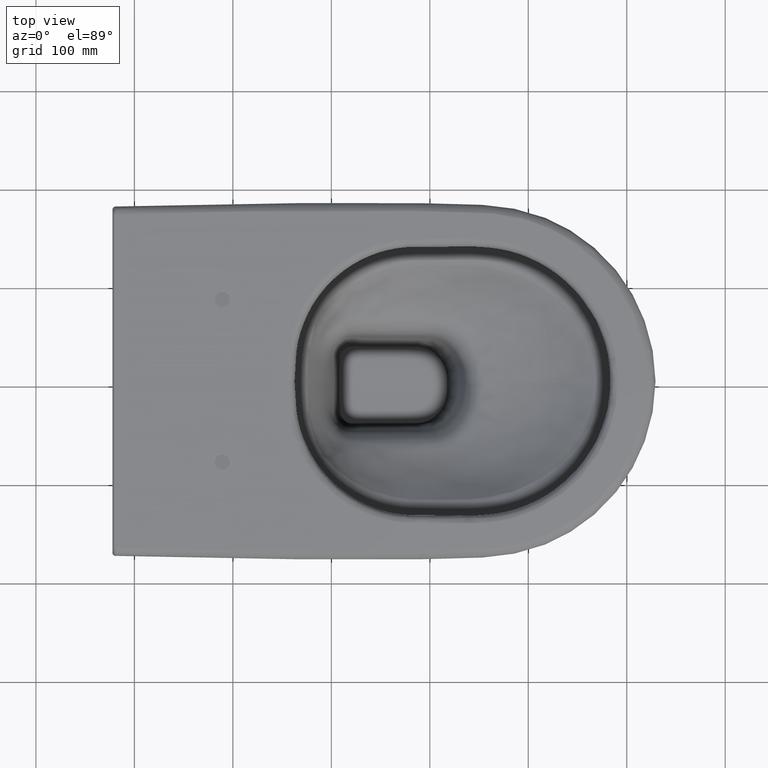
[diagram: clean part render]
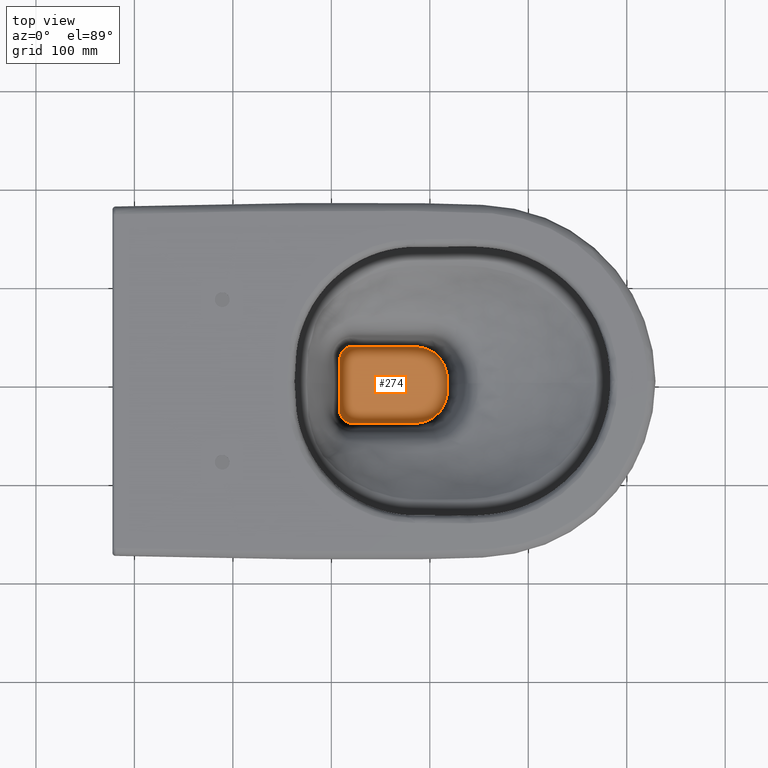
[diagram: same view with one face highlighted and labeled with its STEP entity id]
A machine part, top view. The second image highlights one B-rep face of the part: STEP entity #274.
In plain terms, the highlighted planar face has unit normal (0, 0, 1).
Its self-contained STEP definition (entity closure, byte-faithful):
#149=FACE_OUTER_BOUND('',#498,.T.);
#274=ADVANCED_FACE('',(#149),#388,.T.);
#388=PLANE('',#2264);
#498=EDGE_LOOP('',(#685,#686));
#685=ORIENTED_EDGE('',*,*,#1666,.F.);
#686=ORIENTED_EDGE('',*,*,#1667,.T.);
#1405=VERTEX_POINT('',#4469);
#1406=VERTEX_POINT('',#4470);
#1666=EDGE_CURVE('',#1405,#1406,#2014,.T.);
#1667=EDGE_CURVE('',#1405,#1406,#2015,.T.);
#2014=B_SPLINE_CURVE_WITH_KNOTS('',3,(#4427,#4428,#4429,#4430,#4431,#4432,
#4433,#4434,#4435,#4436,#4437,#4438,#4439,#4440,#4441,#4442,#4443,#4444,
#4445,#4446,#4447,#4448,#4449,#4450,#4451,#4452,#4453,#4454,#4455,#4456,
#4457,#4458,#4459,#4460,#4461,#4462,#4463,#4464,#4465,#4466,#4467,#4468),
 .UNSPECIFIED.,.F.,.F.,(4,2,2,2,2,2,2,2,2,2,2,2,2,2,2,2,2,2,2,2,4),(0.,
0.0312500000000002,0.0625000000000005,0.125000000000001,0.250000000000002,
0.312500000000002,0.343750000000002,0.375000000000002,0.500000000000001,
0.624999999999999,0.687499999999998,0.718749999999998,0.734374999999998,
0.749999999999998,0.781249999999998,0.796874999999998,0.812499999999998,
0.843749999999999,0.874999999999999,0.937499999999999,1.),.UNSPECIFIED.);
#2015=B_SPLINE_CURVE_WITH_KNOTS('',3,(#4471,#4472,#4473,#4474,#4475,#4476,
#4477,#4478,#4479,#4480,#4481,#4482,#4483,#4484,#4485,#4486,#4487,#4488,
#4489,#4490,#4491,#4492,#4493,#4494,#4495,#4496,#4497,#4498,#4499,#4500,
#4501,#4502,#4503,#4504,#4505,#4506,#4507,#4508,#4509,#4510,#4511,#4512),
 .UNSPECIFIED.,.F.,.F.,(4,2,2,2,2,2,2,2,2,2,2,2,2,2,2,2,2,2,2,2,4),(0.,
0.0312500000000002,0.0625000000000003,0.125000000000001,0.250000000000001,
0.312500000000002,0.343750000000002,0.375000000000002,0.500000000000001,
0.624999999999999,0.687499999999999,0.718749999999998,0.734374999999998,
0.749999999999998,0.781249999999998,0.796874999999998,0.812499999999998,
0.843749999999999,0.874999999999999,0.9375,1.),.UNSPECIFIED.);
#2264=AXIS2_PLACEMENT_3D('',#4513,#2352,#2353);
#2352=DIRECTION('',(0.,0.,1.));
#2353=DIRECTION('',(0.966116996922597,-0.258104529710857,0.));
#4427=CARTESIAN_POINT('',(317.802560562712,-2.18945873853844E-14,-216.997843503946));
#4428=CARTESIAN_POINT('',(317.80220057973,-1.74333554590451,-216.997843503946));
#4429=CARTESIAN_POINT('',(317.797428123395,-3.48643017967833,-216.997843503946));
#4430=CARTESIAN_POINT('',(317.792698076288,-6.97288232915837,-216.997843503946));
#4431=CARTESIAN_POINT('',(317.732753951777,-8.7129647013118,-216.997843503946));
#4432=CARTESIAN_POINT('',(317.07932974917,-13.9073546606909,-216.997843503946));
#4433=CARTESIAN_POINT('',(316.082784022679,-17.303198213343,-216.997843503946));
#4434=CARTESIAN_POINT('',(311.589229950912,-26.7276500847813,-216.997843503946));
#4435=CARTESIAN_POINT('',(306.475766931284,-32.0550073958731,-216.997843503946));
#4436=CARTESIAN_POINT('',(297.213874514945,-36.8237993656773,-216.997843503946));
#4437=CARTESIAN_POINT('',(293.819636889955,-37.9137325877949,-216.997843503946));
#4438=CARTESIAN_POINT('',(288.664961433558,-38.710302059458,-216.997843503946));
#4439=CARTESIAN_POINT('',(286.914228802773,-38.8095757655109,-216.997843503946));
#4440=CARTESIAN_POINT('',(283.404410690956,-38.922185211037,-216.997843503946));
#4441=CARTESIAN_POINT('',(281.649474877748,-38.975876071013,-216.997843503946));
#4442=CARTESIAN_POINT('',(272.874048511275,-39.1713282078379,-216.997843503946));
#4443=CARTESIAN_POINT('',(265.852252587347,-39.1855706472924,-216.997843503946));
#4444=CARTESIAN_POINT('',(251.809065900191,-39.2536347989163,-216.997843503946));
#4445=CARTESIAN_POINT('',(244.78745452953,-39.2872779835579,-216.997843503946));
#4446=CARTESIAN_POINT('',(234.25503485264,-39.3329604708255,-216.997843503946));
#4447=CARTESIAN_POINT('',(230.744196124876,-39.3742917195816,-216.997843503946));
#4448=CARTESIAN_POINT('',(225.477970733856,-39.4097532836172,-216.997843503946));
#4449=CARTESIAN_POINT('',(223.722581610498,-39.4058798775774,-216.997843503946));
#4450=CARTESIAN_POINT('',(221.089604337964,-39.3137200882216,-216.997843503946));
#4451=CARTESIAN_POINT('',(220.21167156741,-39.224074977124,-216.997843503946));
#4452=CARTESIAN_POINT('',(218.521584577314,-38.8295873123174,-216.997843503946));
#4453=CARTESIAN_POINT('',(217.678446527287,-38.625390109731,-216.997843503946));
#4454=CARTESIAN_POINT('',(215.254744098344,-37.6270341678349,-216.997843503946));
#4455=CARTESIAN_POINT('',(213.854344783547,-36.527025795876,-216.997843503946));
#4456=CARTESIAN_POINT('',(211.898718319368,-34.7923777227767,-216.997843503946));
#4457=CARTESIAN_POINT('',(211.291383744268,-34.1357787359918,-216.997843503946));
#4458=CARTESIAN_POINT('',(210.328641963448,-32.6850489371078,-216.997843503946));
#4459=CARTESIAN_POINT('',(209.931044230555,-31.9093927477429,-216.997843503946));
#4460=CARTESIAN_POINT('',(208.816191997358,-29.5356341121824,-216.997843503946));
#4461=CARTESIAN_POINT('',(208.541173880218,-27.8162759658969,-216.997843503946));
#4462=CARTESIAN_POINT('',(208.337724828742,-24.3417927982577,-216.997843503946));
#4463=CARTESIAN_POINT('',(208.240659912735,-22.6044792766776,-216.997843503946));
#4464=CARTESIAN_POINT('',(208.168332052362,-17.3891597178471,-216.997843503946));
#4465=CARTESIAN_POINT('',(208.216846104417,-13.9107865975205,-216.997843503946));
#4466=CARTESIAN_POINT('',(208.22655155405,-6.95538849470851,-216.997843503946));
#4467=CARTESIAN_POINT('',(208.224899636207,-3.47769611346157,-216.997843503946));
#4468=CARTESIAN_POINT('',(208.224899636034,-1.20195924935671E-8,-216.997843503946));
#4469=CARTESIAN_POINT('',(317.802560562712,-8.10107646068964E-15,-216.997843503946));
#4470=CARTESIAN_POINT('',(208.224899636034,0.,-216.997843503946));
#4471=CARTESIAN_POINT('',(317.802560562712,2.18945873853844E-14,-216.997843503946));
#4472=CARTESIAN_POINT('',(317.80220057973,1.74333554590451,-216.997843503946));
#4473=CARTESIAN_POINT('',(317.797428123395,3.48643017967835,-216.997843503946));
#4474=CARTESIAN_POINT('',(317.792698076288,6.9728823291584,-216.997843503946));
#4475=CARTESIAN_POINT('',(317.732753951777,8.71296470131182,-216.997843503946));
#4476=CARTESIAN_POINT('',(317.07932974917,13.907354660691,-216.997843503946));
#4477=CARTESIAN_POINT('',(316.082784022679,17.303198213343,-216.997843503946));
#4478=CARTESIAN_POINT('',(311.589229950912,26.7276500847813,-216.997843503946));
#4479=CARTESIAN_POINT('',(306.475766931284,32.0550073958731,-216.997843503946));
#4480=CARTESIAN_POINT('',(297.213874514945,36.8237993656772,-216.997843503946));
#4481=CARTESIAN_POINT('',(293.819636889955,37.9137325877949,-216.997843503946));
#4482=CARTESIAN_POINT('',(288.664961433558,38.710302059458,-216.997843503946));
#4483=CARTESIAN_POINT('',(286.914228802773,38.8095757655109,-216.997843503946));
#4484=CARTESIAN_POINT('',(283.404410690956,38.922185211037,-216.997843503946));
#4485=CARTESIAN_POINT('',(281.649474877748,38.975876071013,-216.997843503946));
#4486=CARTESIAN_POINT('',(272.874048511275,39.1713282078379,-216.997843503946));
#4487=CARTESIAN_POINT('',(265.852252587347,39.1855706472923,-216.997843503946));
#4488=CARTESIAN_POINT('',(251.809065900191,39.2536347989163,-216.997843503946));
#4489=CARTESIAN_POINT('',(244.78745452953,39.2872779835579,-216.997843503946));
#4490=CARTESIAN_POINT('',(234.25503485264,39.3329604708255,-216.997843503946));
#4491=CARTESIAN_POINT('',(230.744196124876,39.3742917195816,-216.997843503946));
#4492=CARTESIAN_POINT('',(225.477970733856,39.4097532836172,-216.997843503946));
#4493=CARTESIAN_POINT('',(223.722581610498,39.4058798775774,-216.997843503946));
#4494=CARTESIAN_POINT('',(221.089604337964,39.3137200882216,-216.997843503946));
#4495=CARTESIAN_POINT('',(220.21167156741,39.224074977124,-216.997843503946));
#4496=CARTESIAN_POINT('',(218.521584577314,38.8295873123174,-216.997843503946));
#4497=CARTESIAN_POINT('',(217.678446527287,38.6253901097311,-216.997843503946));
#4498=CARTESIAN_POINT('',(215.254744098344,37.6270341678349,-216.997843503946));
#4499=CARTESIAN_POINT('',(213.854344783547,36.527025795876,-216.997843503946));
#4500=CARTESIAN_POINT('',(211.898718319368,34.7923777227767,-216.997843503946));
#4501=CARTESIAN_POINT('',(211.291383744268,34.1357787359918,-216.997843503946));
#4502=CARTESIAN_POINT('',(210.328641963448,32.6850489371078,-216.997843503946));
#4503=CARTESIAN_POINT('',(209.931044230555,31.9093927477429,-216.997843503946));
#4504=CARTESIAN_POINT('',(208.816191997358,29.5356341121823,-216.997843503946));
#4505=CARTESIAN_POINT('',(208.541173880218,27.8162759658969,-216.997843503946));
#4506=CARTESIAN_POINT('',(208.337724828742,24.3417927982577,-216.997843503946));
#4507=CARTESIAN_POINT('',(208.240659912735,22.6044792766776,-216.997843503946));
#4508=CARTESIAN_POINT('',(208.168332052362,17.3891597178471,-216.997843503946));
#4509=CARTESIAN_POINT('',(208.216846104417,13.9107865975205,-216.997843503946));
#4510=CARTESIAN_POINT('',(208.22655155405,6.95538849470857,-216.997843503946));
#4511=CARTESIAN_POINT('',(208.224899636207,3.47769611346156,-216.997843503946));
#4512=CARTESIAN_POINT('',(208.224899636034,1.20195554277916E-8,-216.997843503946));
#4513=CARTESIAN_POINT('',(193.171437526919,-35.3118859619891,-216.997843503946));